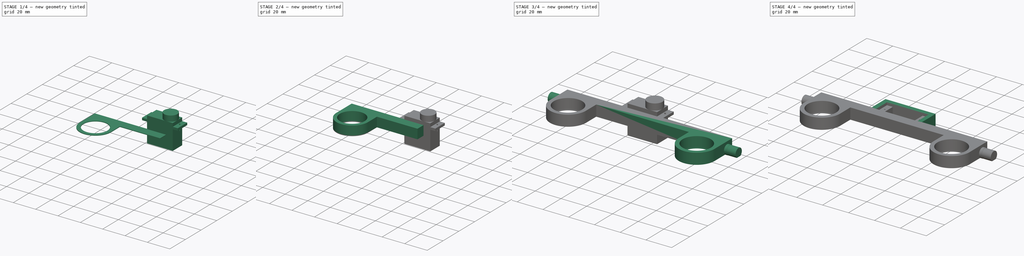
[diagram: build sequence overview — one tinted view per stage of 4, left to right]
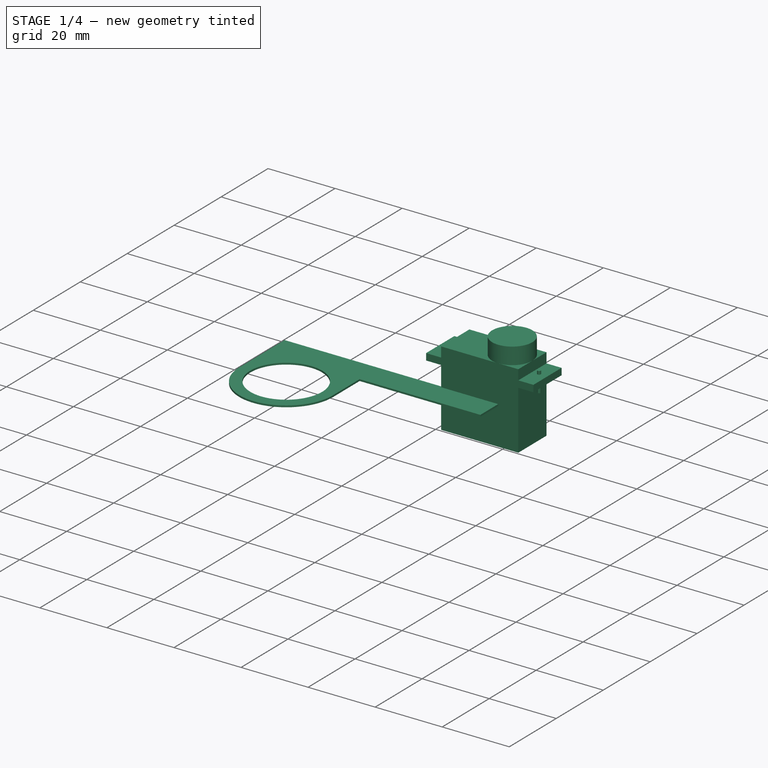
[diagram: stage 1 of 4 — iso view after this stage's code; geometry added in this stage tinted green]
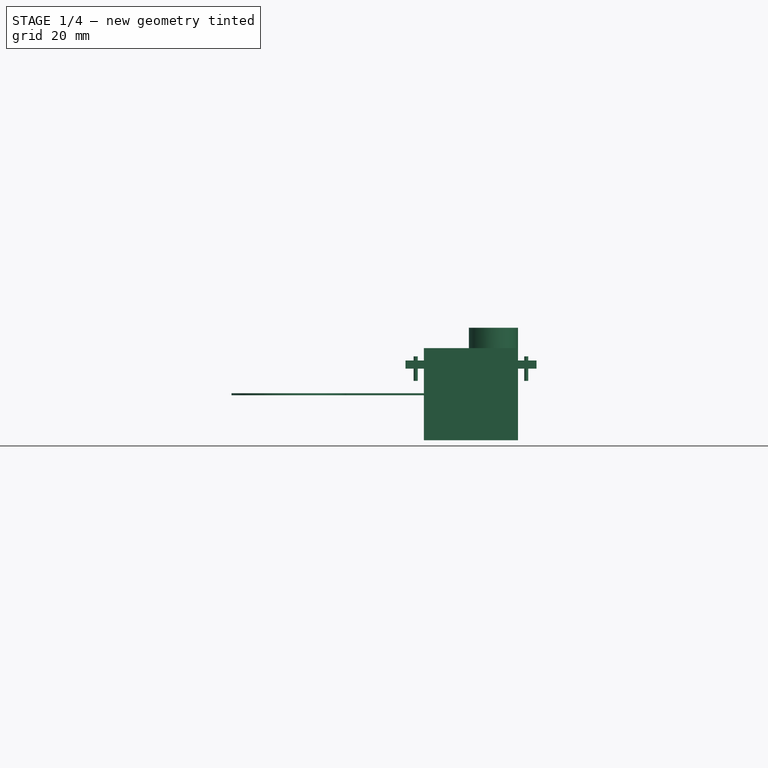
[diagram: stage 1 of 4 — front view after this stage's code; geometry added in this stage tinted green]
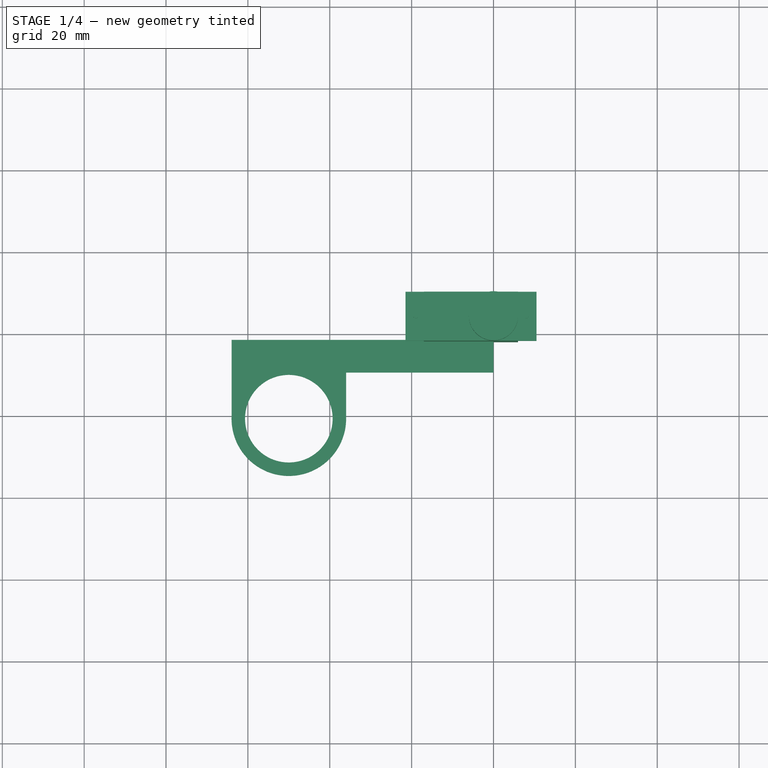
[diagram: stage 1 of 4 — top view after this stage's code; geometry added in this stage tinted green]
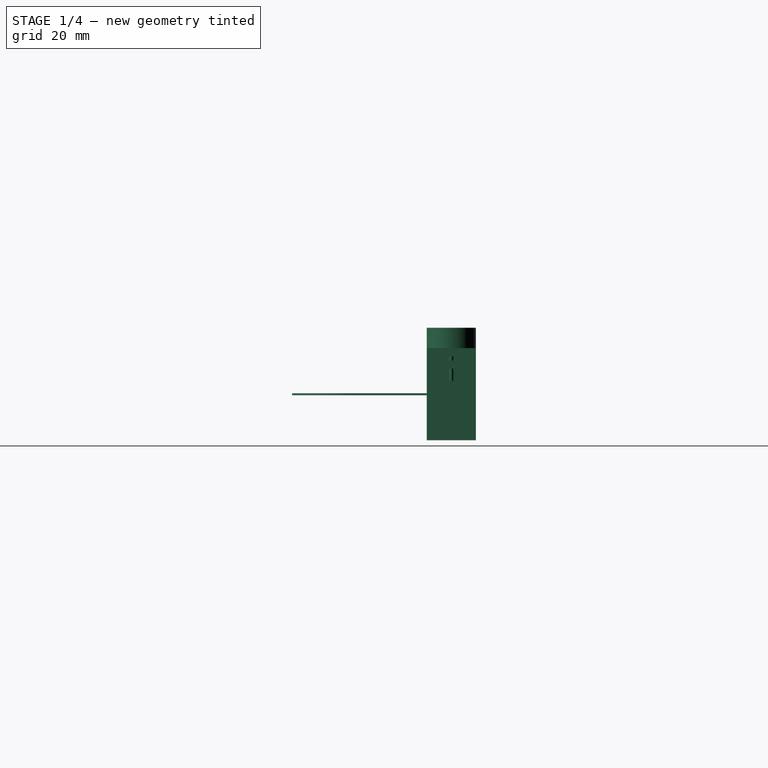
[diagram: stage 1 of 4 — right view after this stage's code; geometry added in this stage tinted green]
FCSTD DOCUMENT  (FreeCAD 0.14R3702 (Git))
Label: hombros
License: CC-BY 3.0
LicenseURL: http://creativecommons.org/licenses/by/3.0/
objects: Sketcher::SketchObject×5, PartDesign::Pad×5, Part::Feature×2, Part::Part2DObjectPython×2, Part::Mirroring×1, Part::MultiFuse×1, Part::FeaturePython×1, Part::Cut×1
note: 23 computed .brp shape members not serialized (recipe doc carries the construction recipe); baked Part::Feature solids carry a one-line shape summary decoded from their .brp

FEATURE [Sketcher::SketchObject] Sketch  label="sk-medio-cuerpo-inf"
  sketch-geometry (7):
    g0: Circle CenterX=-50 CenterY=-0.763774 CenterZ=0 NormalX=0 NormalY=0 NormalZ=1 Radius=10.7
    g1: ArcOfCircle CenterX=-50 CenterY=-0.763774 CenterZ=0 NormalX=0 NormalY=0 NormalZ=1 Radius=14 StartAngle=3.0848 EndAngle=6.28547
    g2: LineSegment StartX=-63.9774 StartY=0.0309369 StartZ=0 EndX=-63.9774 EndY=18.5003 EndZ=0
    g3: LineSegment StartX=-63.9774 StartY=18.5003 StartZ=0 EndX=0 EndY=18.5003 EndZ=0
    g4: LineSegment StartX=0 StartY=18.5003 StartZ=0 EndX=0 EndY=10.5003 EndZ=0
    g5: LineSegment StartX=-36 StartY=-0.731737 StartZ=0 EndX=-36 EndY=10.5003 EndZ=0
    g6: LineSegment StartX=-36 StartY=10.5003 StartZ=0 EndX=0 EndY=10.5003 EndZ=0
  constraints (17):
    c: Radius(g0) = 10.7
    c: Horizontal(g3)
    c: Vertical(g4)
    c: Vertical(g2)
    c: Radius(g1) = 14
    c: DistanceX(g-1,g0) = -50
    c: Coincident(g1,g5)
    c: Vertical(g5)
    c: Horizontal(g6)
    c: Coincident(g5,g6)
    c: Coincident(g3,g4)
    c: Coincident(g4,g6)
    c: Tangent(g4,g-2)
    c: Coincident(g1,g2)
    c: Coincident(g0,g1)
    c: Coincident(g2,g3)
    c: DistanceY(g4) = -8
FEATURE [PartDesign::Pad] Pad  label="pad-medio-cuerpo-inf"
  Length = 0.5
  Length2 = 5
  Sketch = -> Sketch
  Type = 0
FEATURE [Part::Feature] Fusion002  label="esquema-servo-para-restar"
  Placement = pos=(-5.5,7.103,11.5) rot=(0,1,0;3.14159rad)
  shape: bbox 32 x 12 x 27.5 mm, 26 faces (baked)
FEATURE [Part::FeaturePython] Clone  label="servo-escalado al 1,1"  # Draft clone (typed FeaturePython)
  Objects = -> [Fusion002]
  Placement = pos=(-5.5,7.103,11.5) rot=(0,1,0;3.14159rad)
  Scale = (1.1,1.1,1.1)
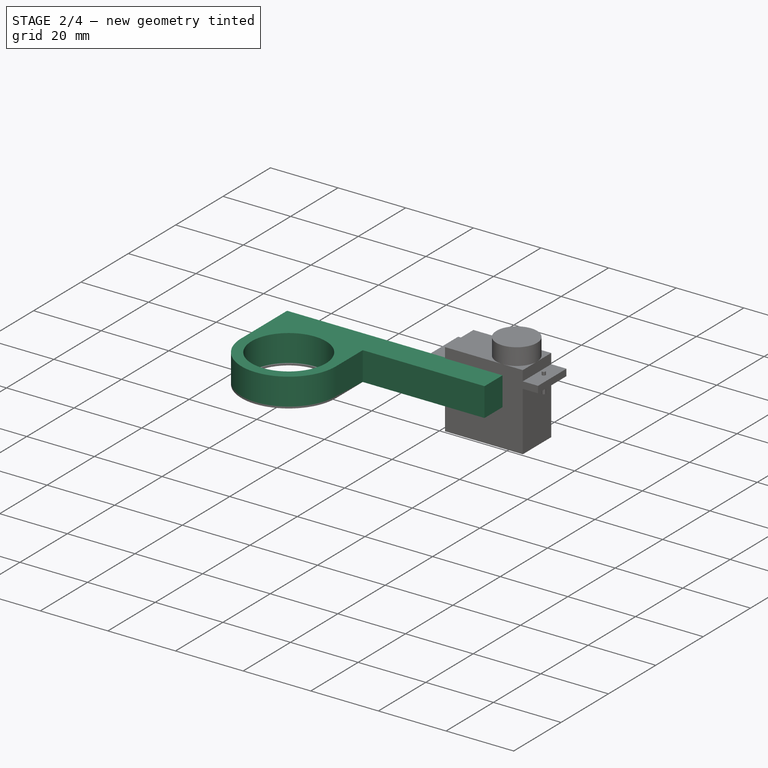
[diagram: stage 2 of 4 — iso view after this stage's code; geometry added in this stage tinted green]
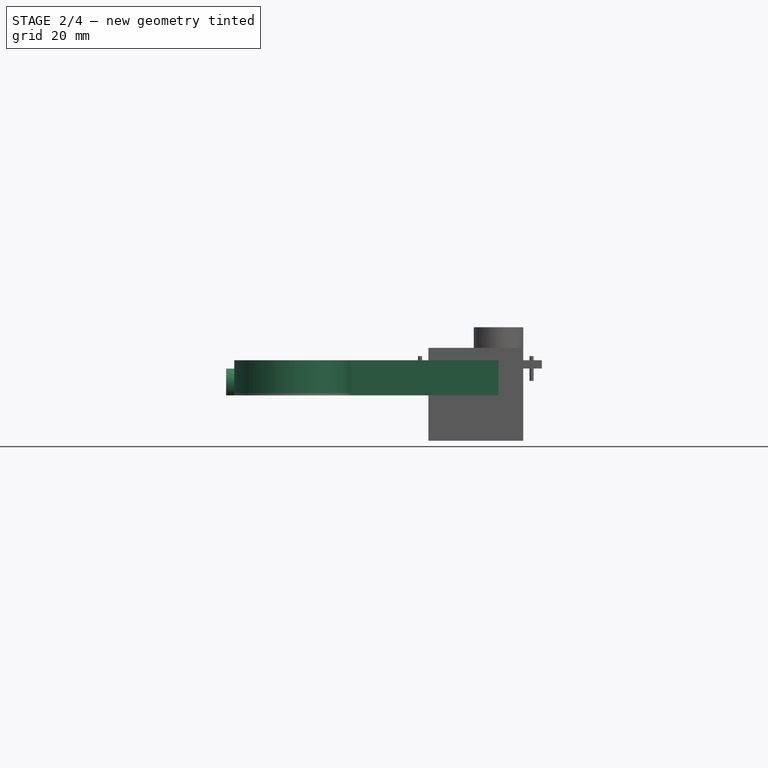
[diagram: stage 2 of 4 — front view after this stage's code; geometry added in this stage tinted green]
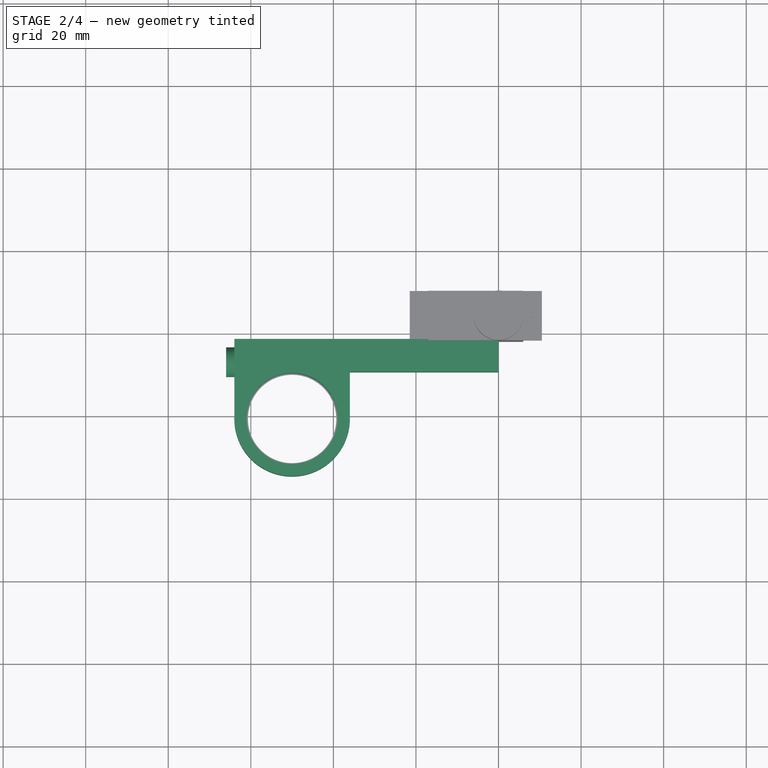
[diagram: stage 2 of 4 — top view after this stage's code; geometry added in this stage tinted green]
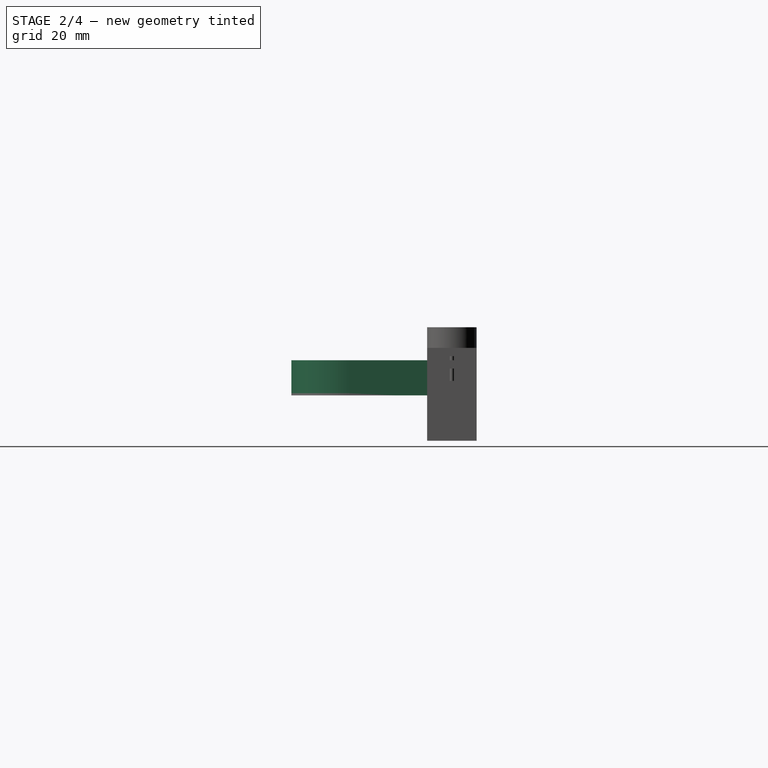
[diagram: stage 2 of 4 — right view after this stage's code; geometry added in this stage tinted green]
FEATURE [Sketcher::SketchObject] Sketch001  label="sk-medio-cuerpo-sup"
  ExternalGeometry = -> [Pad]
  Placement = pos=(0,0,0.5) rot=(0,0,1;0rad)
  Support = -> Pad [Face9]
  sketch-geometry (7):
    g0: LineSegment StartX=0 StartY=18.5003 StartZ=0 EndX=-63.9774 EndY=18.5003 EndZ=0
    g1: LineSegment StartX=-63.9774 StartY=18.5003 StartZ=0 EndX=-63.9774 EndY=0.0309369 EndZ=0
    g2: LineSegment StartX=-36 StartY=-0.731737 StartZ=0 EndX=-36 EndY=10.5003 EndZ=0
    g3: LineSegment StartX=-36 StartY=10.5003 StartZ=0 EndX=0 EndY=10.5003 EndZ=0
    g4: LineSegment StartX=0 StartY=10.5003 StartZ=0 EndX=0 EndY=18.5003 EndZ=0
    g5: Circle CenterX=-50 CenterY=-0.763774 CenterZ=0 NormalX=0 NormalY=0 NormalZ=1 Radius=11.01
    g6: ArcOfCircle CenterX=-50 CenterY=-0.763774 CenterZ=0 NormalX=0 NormalY=0 NormalZ=1 Radius=14 StartAngle=3.0848 EndAngle=6.28547
  constraints (15):
    c: Coincident(g0,g1)
    c: Coincident(g2,g3)
    c: Coincident(g3,g4)
    c: Coincident(g0,g-9)
    c: Coincident(g5,g-8)
    c: Coincident(g2,g-7)
    c: Coincident(g2,g-6)
    c: Coincident(g3,g-5)
    c: Coincident(g0,g4)
    c: Coincident(g0,g-4)
    c: Radius(g5) = 11.01
    c: Coincident(g6,g5)
    c: Coincident(g1,g6)
    c: Coincident(g1,g-9)
    c: Coincident(g6,g2)
FEATURE [PartDesign::Pad] Pad001  label="pad-medio-cuerpo-sup"
  Length = 8
  Length2 = 5
  Sketch = -> Sketch001
  Type = 0
FEATURE [Sketcher::SketchObject] Sketch002  label="sk-clavicula-1"
  Placement = pos=(-63.9774,0,0) rot=(0.57735,-0.57735,-0.57735;2.0944rad)
  Support = -> Pad001 [Face12]
  sketch-geometry (2):
    g0: ArcOfCircle CenterX=-12.9306 CenterY=2.86856 CenterZ=0 NormalX=0 NormalY=0 NormalZ=1 Radius=3.6 StartAngle=5.36117 EndAngle=10.3468
    g1: LineSegment StartX=-15.1057 StartY=0 StartZ=0 EndX=-10.7554 EndY=0 EndZ=0
  constraints (5):
    c: PointOnObject(g0,g-1)
    c: PointOnObject(g0,g-1)
    c: Radius(g0) = 3.6
    c: Coincident(g0,g1)
    c: Coincident(g0,g1)
FEATURE [PartDesign::Pad] Pad002  label="pad-clavicula-1"
  Length = 2
  Length2 = 5
  Sketch = -> Sketch002
  Type = 0
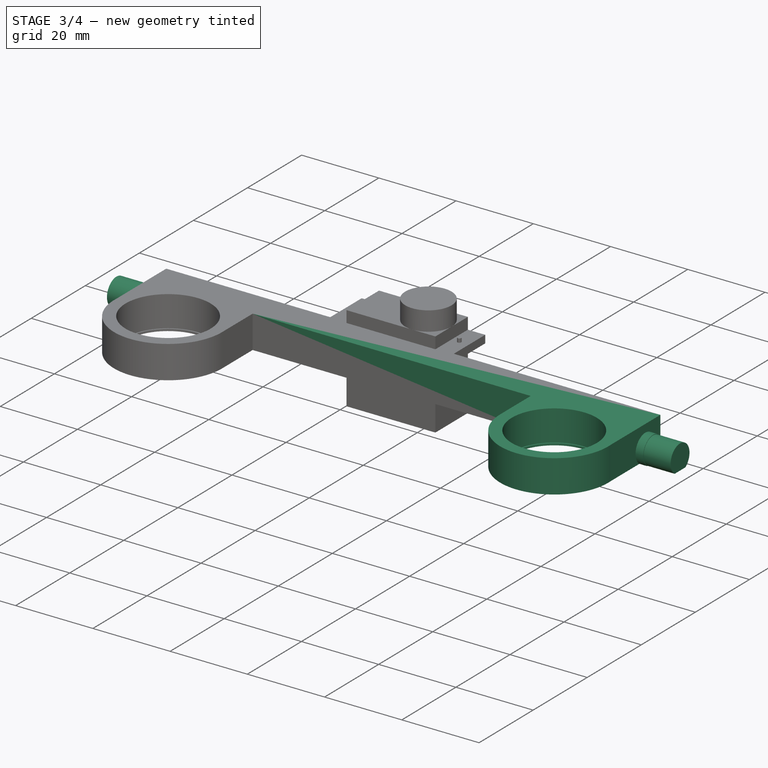
[diagram: stage 3 of 4 — iso view after this stage's code; geometry added in this stage tinted green]
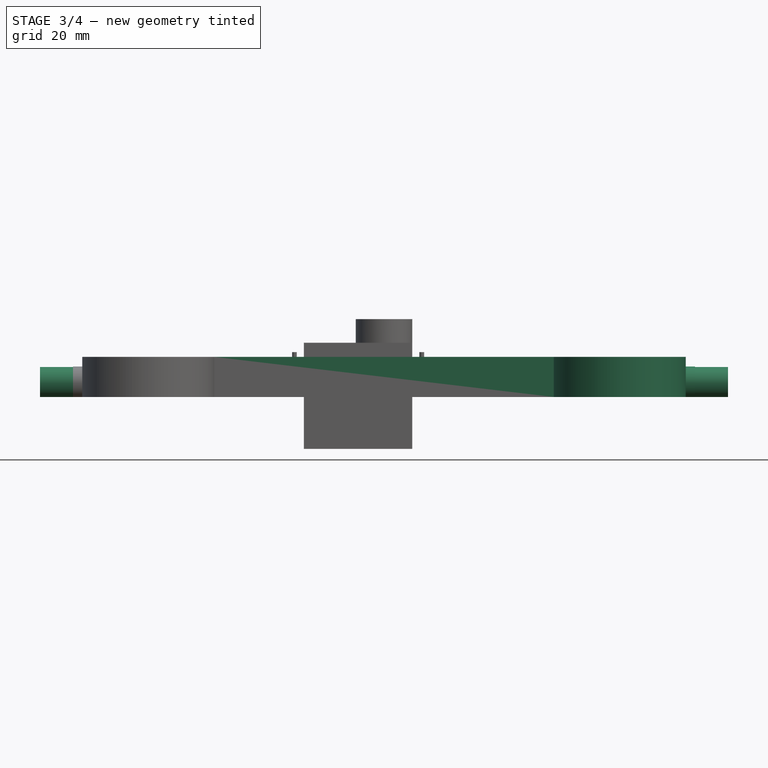
[diagram: stage 3 of 4 — front view after this stage's code; geometry added in this stage tinted green]
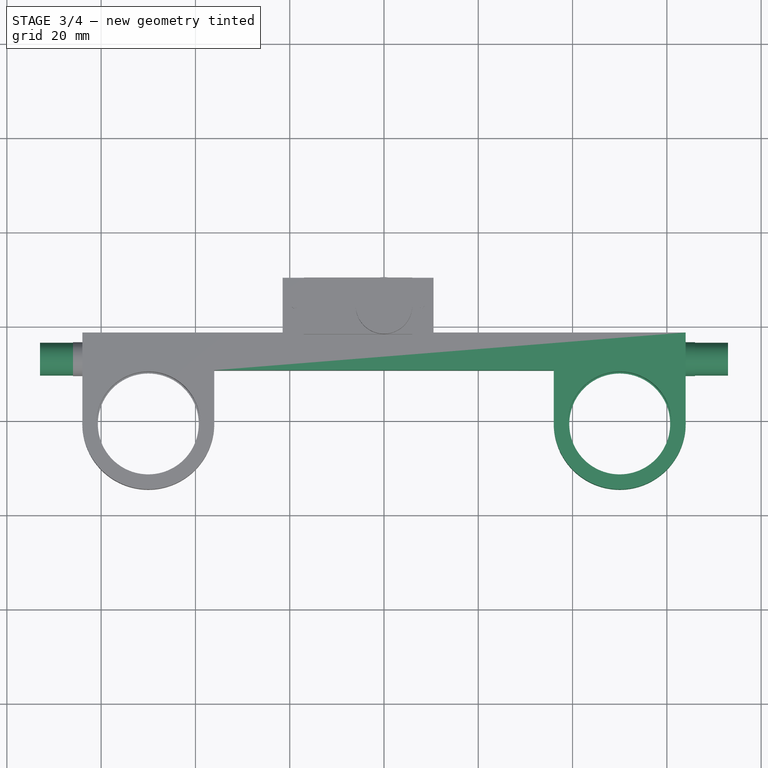
[diagram: stage 3 of 4 — top view after this stage's code; geometry added in this stage tinted green]
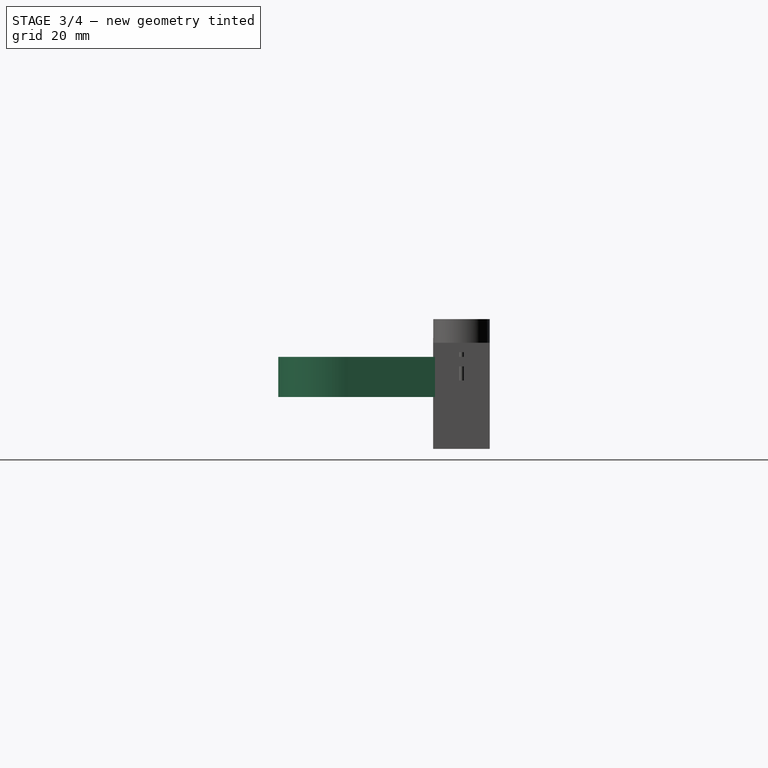
[diagram: stage 3 of 4 — right view after this stage's code; geometry added in this stage tinted green]
FEATURE [Sketcher::SketchObject] Sketch003  label="sk-clavicula-2"
  ExternalGeometry = -> [Pad002]
  Placement = pos=(-65.9774,0,0) rot=(0.57735,-0.57735,-0.57735;2.0944rad)
  Support = -> Pad002 [Face11]
  sketch-geometry (2):
    g0: ArcOfCircle CenterX=-12.9306 CenterY=2.86856 CenterZ=0 NormalX=0 NormalY=0 NormalZ=1 Radius=3.49 StartAngle=5.31838 EndAngle=10.3896
    g1: LineSegment StartX=-14.9184 StartY=1e-12 StartZ=0 EndX=-10.9428 EndY=1e-12 EndZ=0
  constraints (6):
    c: Coincident(g0,g-3)
    c: PointOnObject(g0,g-4)
    c: PointOnObject(g0,g-4)
    c: Radius(g0) = 3.49
    c: Coincident(g0,g1)
    c: Coincident(g0,g1)
FEATURE [PartDesign::Pad] Pad003  label="pad-clavicula-2"
  Length = 7
  Length2 = 5
  Sketch = -> Sketch003
  Type = 0
FEATURE [Part::Feature] Pad003001  label="Pad004"
  shape: bbox 72.98 x 33.26 x 8.5 mm, 16 faces (baked)
FEATURE [Part::Mirroring] Part__Mirroring  label="mirror"
  Base = (0,0,0)
  Normal = (1,0,0)
  Source = -> Pad003
FEATURE [Part::MultiFuse] Fusion001  label="union-dos-mirror"
  Shapes = -> [Pad003,Part__Mirroring]
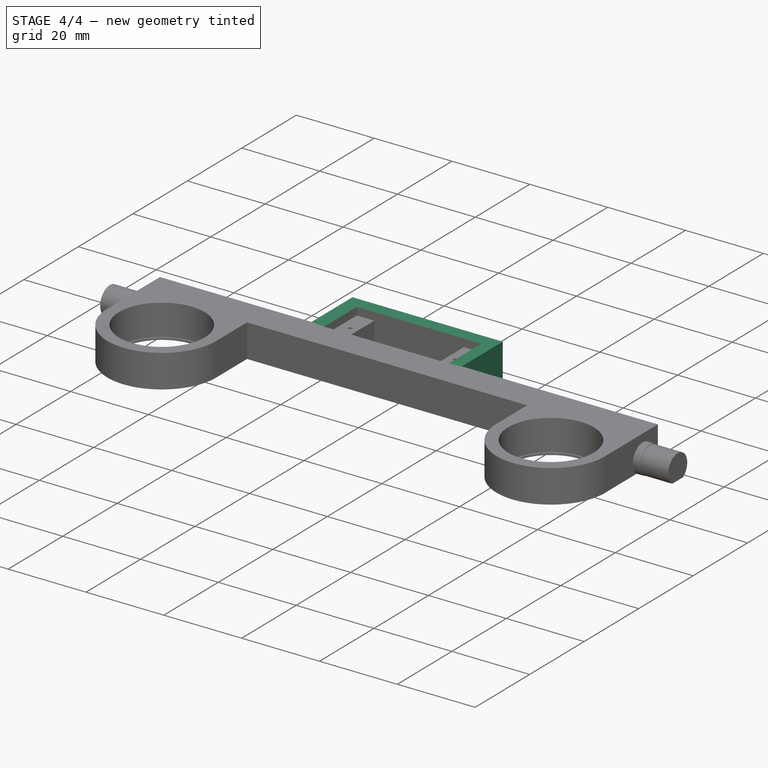
[diagram: stage 4 of 4 — iso view after this stage's code; geometry added in this stage tinted green]
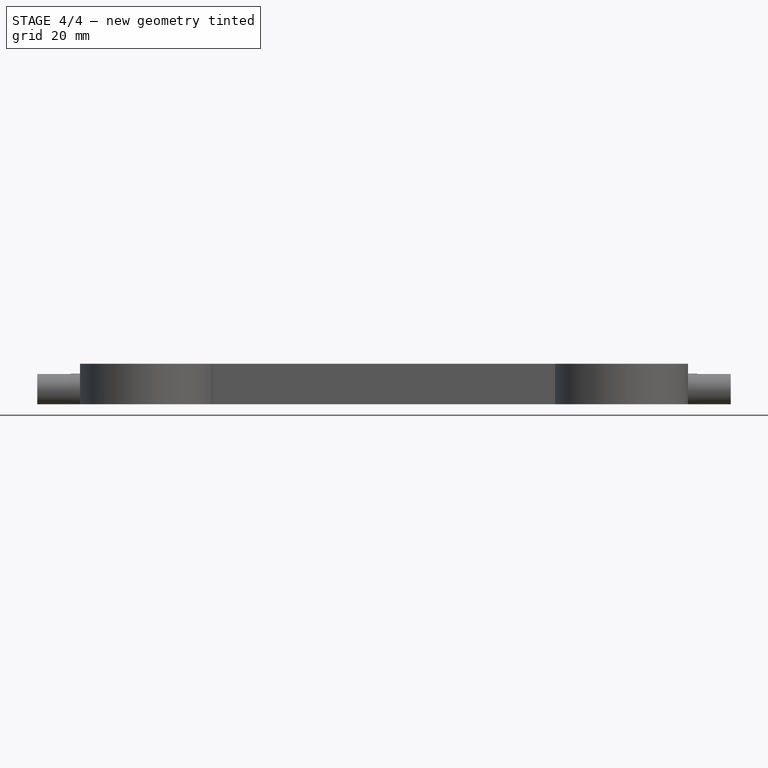
[diagram: stage 4 of 4 — front view after this stage's code; geometry added in this stage tinted green]
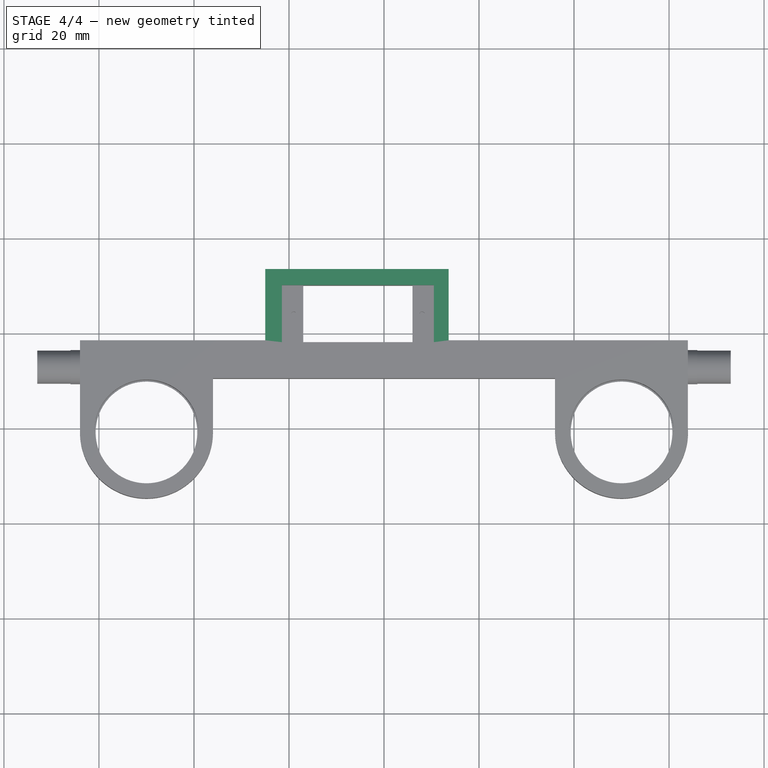
[diagram: stage 4 of 4 — top view after this stage's code; geometry added in this stage tinted green]
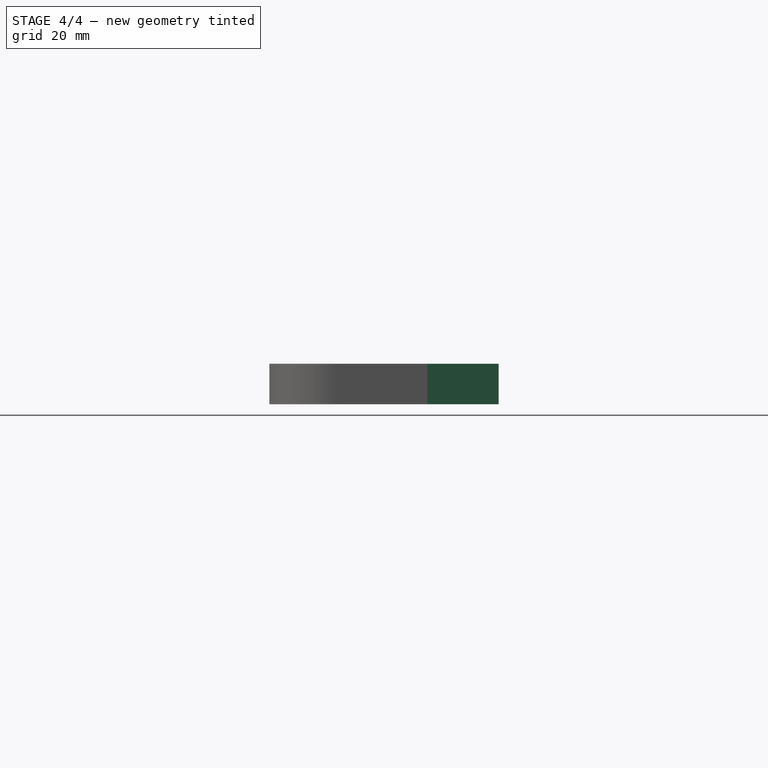
[diagram: stage 4 of 4 — right view after this stage's code; geometry added in this stage tinted green]
FEATURE [Sketcher::SketchObject] Sketch004  label="sk-soporte-servo"
  ExternalGeometry = -> [Fusion001]
  Placement = pos=(0,18.5003,0) rot=(0,0.707107,0.707107;3.14159rad)
  Support = -> Fusion001 [Face25]
  sketch-geometry (4):
    g0: LineSegment StartX=-13.6113 StartY=8.5 StartZ=0 EndX=24.9998 EndY=8.5 EndZ=0
    g1: LineSegment StartX=24.9998 StartY=8.5 StartZ=0 EndX=24.9998 EndY=0 EndZ=0
    g2: LineSegment StartX=24.9998 StartY=0 StartZ=0 EndX=-13.6113 EndY=0 EndZ=0
    g3: LineSegment StartX=-13.6113 StartY=0 StartZ=0 EndX=-13.6113 EndY=8.5 EndZ=0
  constraints (10):
    c: Coincident(g0,g1)
    c: Coincident(g1,g2)
    c: Coincident(g2,g3)
    c: Coincident(g3,g0)
    c: Horizontal(g0)
    c: Horizontal(g2)
    c: Vertical(g1)
    c: Vertical(g3)
    c: PointOnObject(g2,g-4)
    c: PointOnObject(g0,g-3)
FEATURE [PartDesign::Pad] Pad003002  label="pad-soporte-servo"
  Length = 15
  Length2 = 5
  Sketch = -> Sketch004
  Type = 0
FEATURE [Part::Cut] Cut  label="hombros"
  Base = -> Pad003002
  Tool = -> Clone
FEATURE [Part::Part2DObjectPython] Line  label="centro-rodamientos"  # Draft 2D object (typed FeaturePython)
  ChamferSize = 0
  Closed = false
  End = (50,-0.763774,8.5)
  FilletRadius = 0
  MakeFace = false
  Points = (2) [(-50,-0.763774,8.5),(50,-0.763774,8.5)]
  Start = (-50,-0.763774,8.5)
  Support = -> Cut
FEATURE [Part::Part2DObjectPython] Line001  label="ejes-servo"  # Draft 2D object (typed FeaturePython)
  ChamferSize = 0
  Closed = false
  End = (0,-0.763774,8.5)
  FilletRadius = 0
  MakeFace = false
  Points = (2) [(-8.88178e-16,24.103,16.5),(0,-0.763774,8.5)]
  Start = (0,24.103,16.5)
  Support = -> Clone
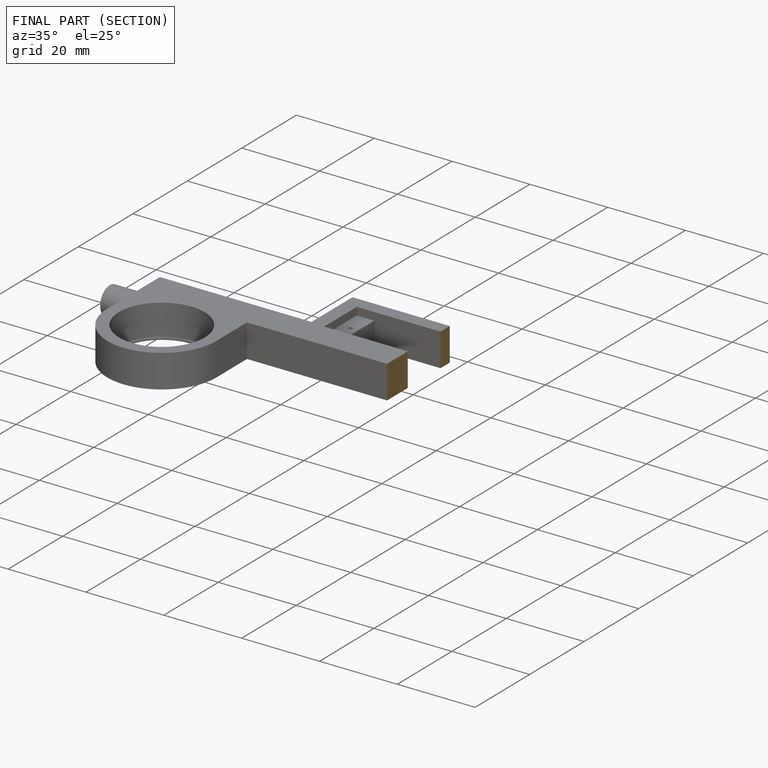
[diagram: finished part — half-section view (interior)]
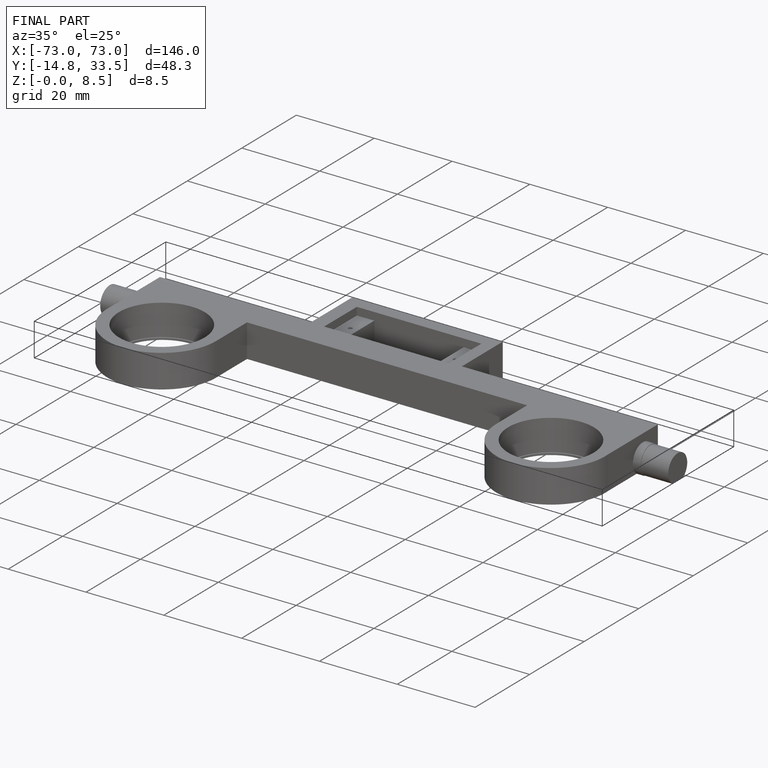
[diagram: finished part — iso view with bounding-box wireframe]
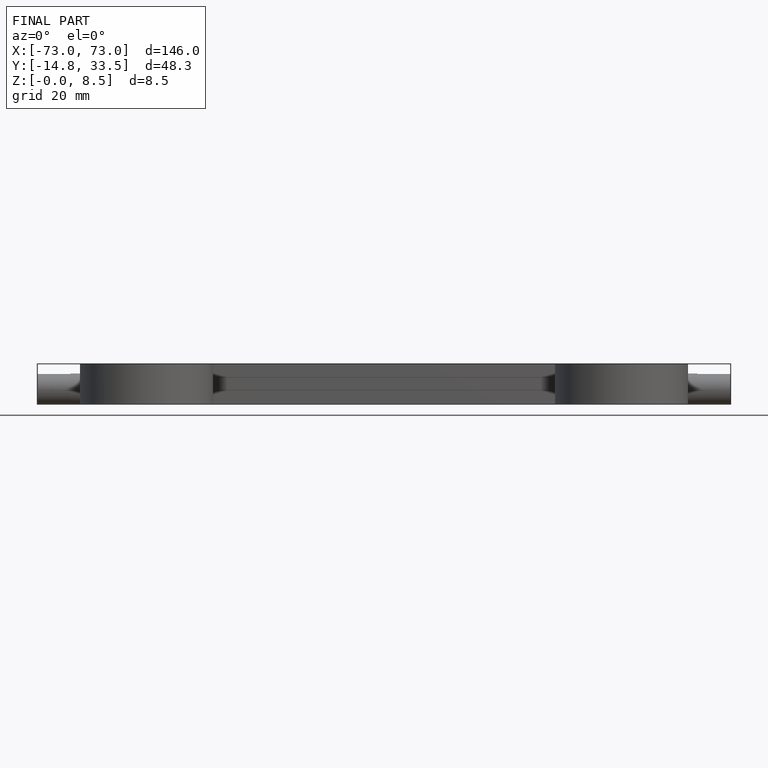
[diagram: finished part — front view with bounding-box wireframe]
